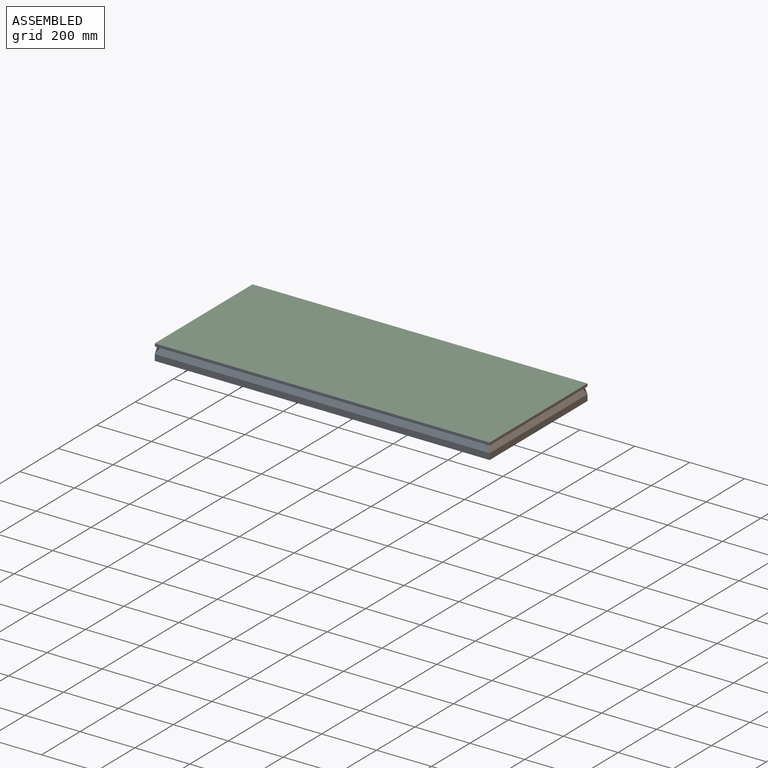
[diagram: assembled view]
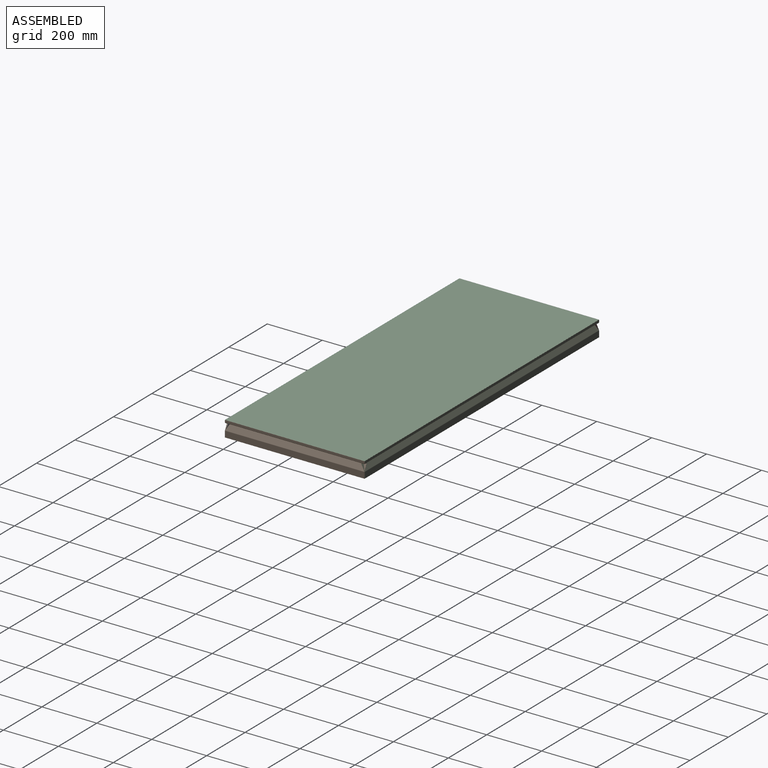
[diagram: assembled view, second angle]
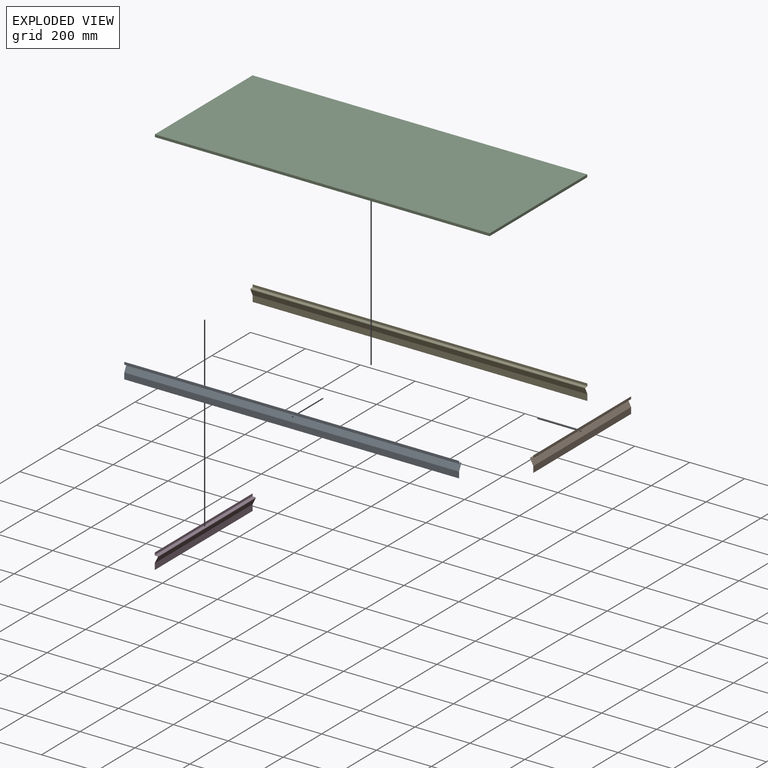
[diagram: exploded view]
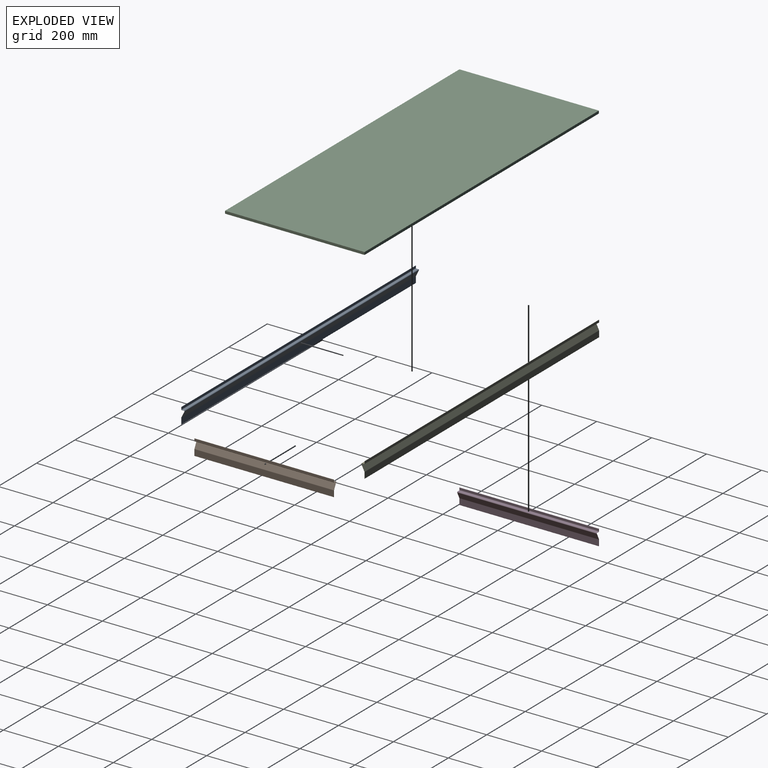
[diagram: exploded view, second angle]
ASSEMBLY  parts=5 mates=12
PART A: 18 faces, bbox 1219.2x12.2x57.8 mm
  f0: plane 1219.2x7.62mm, normal (0,-1,0), area 9290.3mm2, adj f1,f15,f16,f17
  f1: cylinder r=2.22mm len=1219.2mm, axis (1,0,0), area 4256.3mm2, adj f0,f2,f16,f17
  f2: plane 1219.2x7.71mm, normal (0,0,-1), area 9403.3mm2, adj f1,f3,f16,f17
  f3: cylinder r=1.59mm len=1219.2mm, axis (1,0,0), area 3937.6mm2, adj f2,f4,f16,f17
  f4: plane 1219.2x22.24mm, normal (0,-0.89,0.45), area 30316.6mm2, adj f3,f5,f16,f17
  f5: cylinder r=2.22mm len=1219.2mm, axis (1,0,0), area 1256.3mm2, adj f4,f6,f16,f17
  f6: plane 1219.2x21.78mm, normal (0,-1,0), area 26548.4mm2, adj f5,f7,f16,f17
  f7: cylinder r=0.32mm len=1219.2mm, axis (1,0,0), area 1216.1mm2, adj f6,f8,f16,f17
  f8: plane 1219.2x21.78mm, normal (0,1,0), area 26548.4mm2, adj f7,f9,f16,f17
  f9: cylinder r=1.59mm len=1219.2mm, axis (1,0,0), area 897.4mm2, adj f8,f10,f16,f17
  f10: plane 1219.2x22.24mm, normal (0,0.89,-0.45), area 30316.6mm2, adj f9,f11,f16,f17
  f11: cylinder r=2.22mm len=1219.2mm, axis (1,0,0), area 5512.7mm2, adj f10,f12,f16,f17
  f12: plane 1219.2x7.71mm, normal (0,0,1), area 9403.3mm2, adj f11,f13,f16,f17
  f13: cylinder r=1.59mm len=1219.2mm, axis (1,0,0), area 3040.2mm2, adj f12,f14,f16,f17
  f14: plane 1219.2x7.62mm, normal (0,1,0), area 9290.3mm2, adj f13,f15,f16,f17
  f15: cylinder r=0.32mm len=1219.2mm, axis (1,0,0), area 1216.1mm2, adj f0,f14,f16,f17
  f16: plane 57.79x12.16mm, normal (-1,0,0), area 44.6mm2, adj f0,f1,f2,f3,f4,f5,f6,f7
  f17: plane 57.79x12.16mm, normal (1,0,0), area 44.6mm2, adj f0,f1,f2,f3,f4,f5,f6,f7
PART B: 18 faces, bbox 508x12.2x57.8 mm
  f0: cylinder r=1.59mm len=508mm, axis (1,0,0), area 373.9mm2, adj f1,f15,f16,f17
  f1: plane 508x22.24mm, normal (0,0.89,-0.45), area 12631.9mm2, adj f0,f2,f16,f17
  f2: cylinder r=2.22mm len=508mm, axis (1,0,0), area 2296.9mm2, adj f1,f3,f16,f17
  f3: plane 508x7.71mm, normal (0,0,1), area 3918mm2, adj f2,f4,f16,f17
  f4: cylinder r=1.59mm len=508mm, axis (1,0,0), area 1266.8mm2, adj f3,f5,f16,f17
  f5: plane 508x7.62mm, normal (0,1,0), area 3871mm2, adj f4,f6,f16,f17
  f6: cylinder r=0.32mm len=508mm, axis (1,0,0), area 506.7mm2, adj f5,f7,f16,f17
  f7: plane 508x7.62mm, normal (0,-1,0), area 3871mm2, adj f6,f8,f16,f17
  f8: cylinder r=2.22mm len=508mm, axis (1,0,0), area 1773.5mm2, adj f7,f9,f16,f17
  f9: plane 508x7.71mm, normal (0,0,-1), area 3918mm2, adj f8,f10,f16,f17
  f10: cylinder r=1.59mm len=508mm, axis (1,0,0), area 1640.7mm2, adj f9,f11,f16,f17
  f11: plane 508x22.24mm, normal (0,-0.89,0.45), area 12631.9mm2, adj f10,f12,f16,f17
  f12: cylinder r=2.22mm len=508mm, axis (1,0,0), area 523.5mm2, adj f11,f13,f16,f17
  f13: plane 508x21.78mm, normal (0,-1,0), area 11061.8mm2, adj f12,f14,f16,f17
  f14: cylinder r=0.32mm len=508mm, axis (1,0,0), area 506.7mm2, adj f13,f15,f16,f17
  f15: plane 508x21.78mm, normal (0,1,0), area 11061.8mm2, adj f0,f14,f16,f17
  f16: plane 57.79x12.16mm, normal (-1,0,0), area 44.6mm2, adj f0,f1,f2,f3,f4,f5,f6,f7
  f17: plane 57.79x12.16mm, normal (1,0,0), area 44.6mm2, adj f0,f1,f2,f3,f4,f5,f6,f7
PART C: 6 faces, bbox 1219.2x508x9.5 mm
  f0: plane 508x9.53mm, normal (1,0,0), area 4838.7mm2, adj f1,f3,f4,f5
  f1: plane 1219.2x9.53mm, normal (0,1,0), area 11612.9mm2, adj f0,f2,f4,f5
  f2: plane 508x9.53mm, normal (-1,0,0), area 4838.7mm2, adj f1,f3,f4,f5
  f3: plane 1219.2x9.53mm, normal (0,-1,0), area 11612.9mm2, adj f0,f2,f4,f5
  f4: plane 1219.2x508mm, normal (0,0,1), area 619353.6mm2, adj f0,f1,f2,f3
  f5: plane 1219.2x508mm, normal (0,0,-1), area 619353.6mm2, adj f0,f1,f2,f3
PART D: same geometry as B
PART E: same geometry as A
PLACE A t=(-427.52,-360.92,177.24)mm
PLACE B rot(axis=(0,0,1),90deg) t=(-413.45,135.75,177.24)mm
PLACE C t=(-1037.12,-118.25,194.1)mm
PLACE D rot(axis=(0,0,-1),90deg) t=(-1660.79,-372.25,177.24)mm
PLACE E rot(axis=(0,0,1),180deg) t=(-1646.72,124.42,177.24)mm
MATE planar D.f3 <-> C.f5  axis (0,0,1) through (-1641.28,-118.25,194.1)mm
MATE planar D.f17 <-> C.f3  axis (0,-1,0) through (-1643.73,-372.25,177.62)mm
MATE planar B.f15 <-> E.f16  axis (-1,0,0) through (-427.52,135.75,146.16)mm
MATE planar A.f12 <-> B.f3  axis (0,0,1) through (-1037.12,-366.81,194.1)mm
MATE planar B.f3 <-> E.f12  axis (0,0,1) through (-432.96,-118.25,194.1)mm
MATE planar D.f5 <-> C.f2  axis (1,0,0) through (-1646.72,-118.25,199.5)mm
MATE planar E.f14 <-> C.f1  axis (0,-1,0) through (-1037.12,135.75,199.5)mm
MATE planar E.f12 <-> D.f3  axis (0,0,1) through (-1037.12,130.31,194.1)mm
MATE planar A.f14 <-> C.f3  axis (0,1,0) through (-1037.12,-372.25,199.5)mm
MATE planar B.f16 <-> A.f8  axis (0,-1,0) through (-430.51,-372.25,177.62)mm
MATE planar A.f16 <-> D.f15  axis (-1,0,0) through (-1646.72,-369.26,177.62)mm
MATE planar B.f5 <-> C.f0  axis (-1,0,0) through (-427.52,-118.25,199.5)mm
